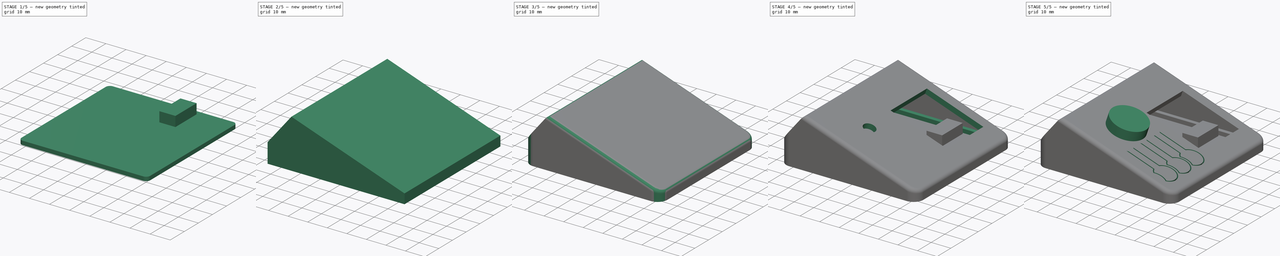
[diagram: build sequence overview — one tinted view per stage of 5, left to right]
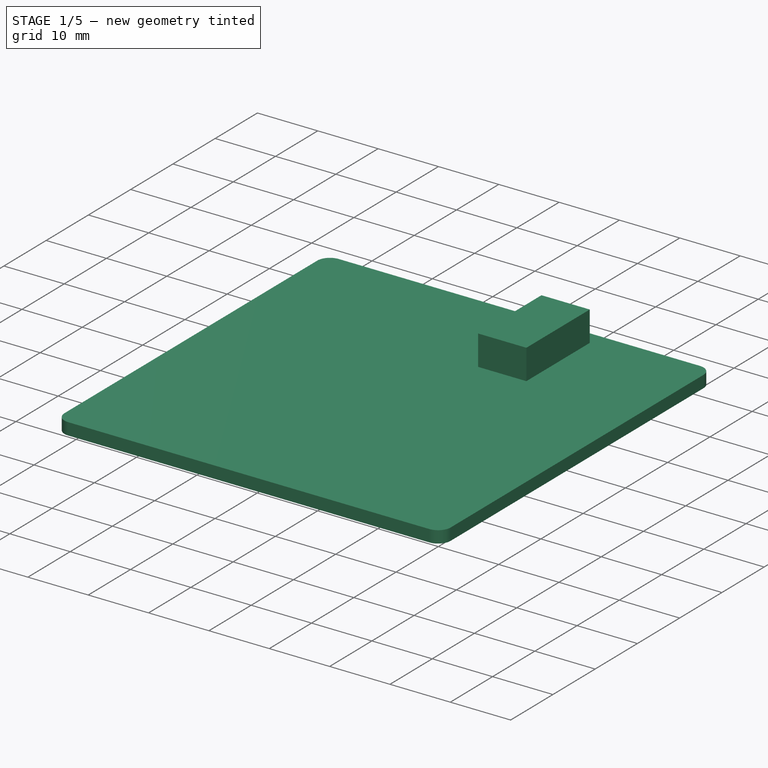
[diagram: stage 1 of 5 — iso view after this stage's code; geometry added in this stage tinted green]
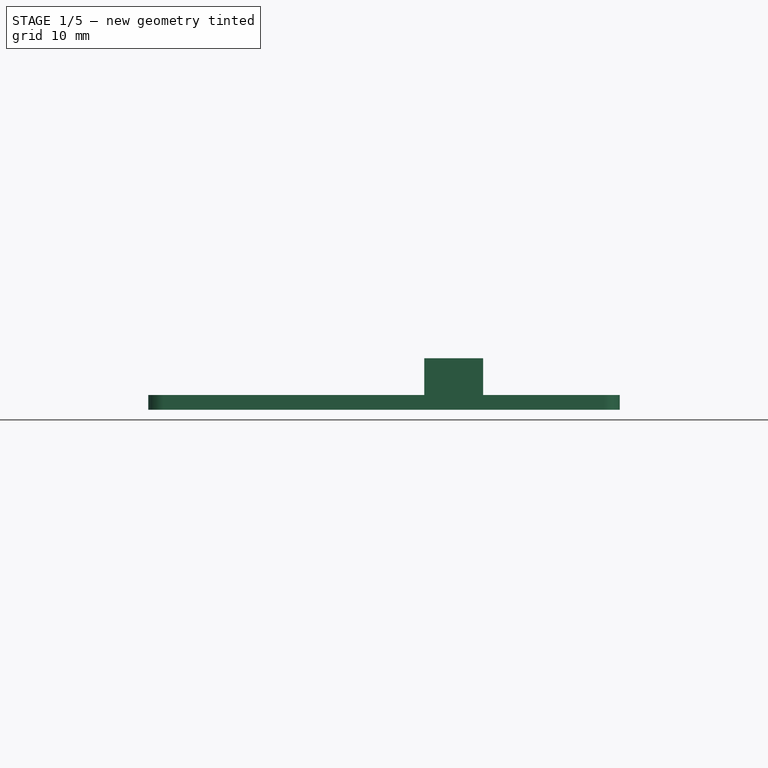
[diagram: stage 1 of 5 — front view after this stage's code; geometry added in this stage tinted green]
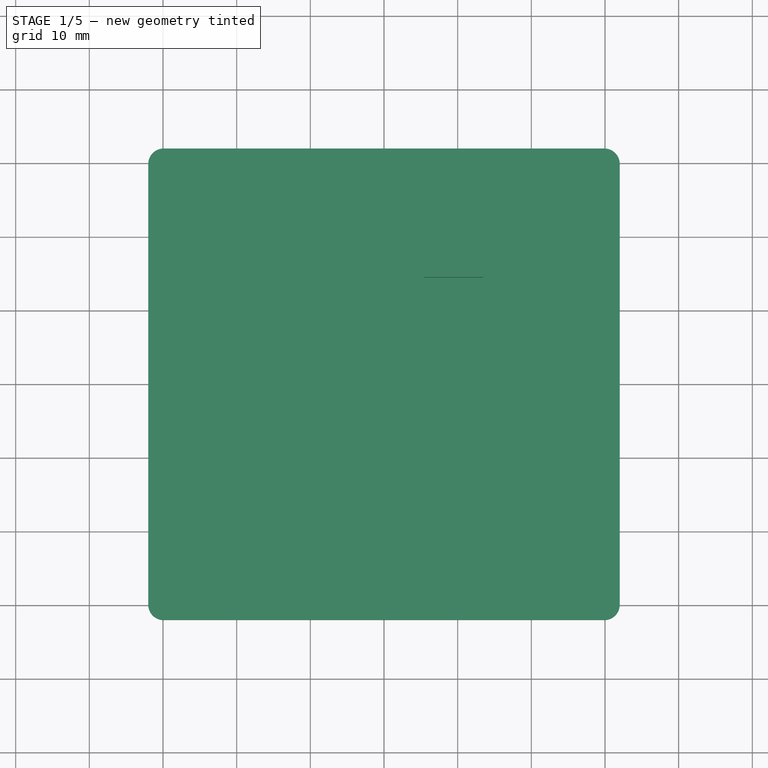
[diagram: stage 1 of 5 — top view after this stage's code; geometry added in this stage tinted green]
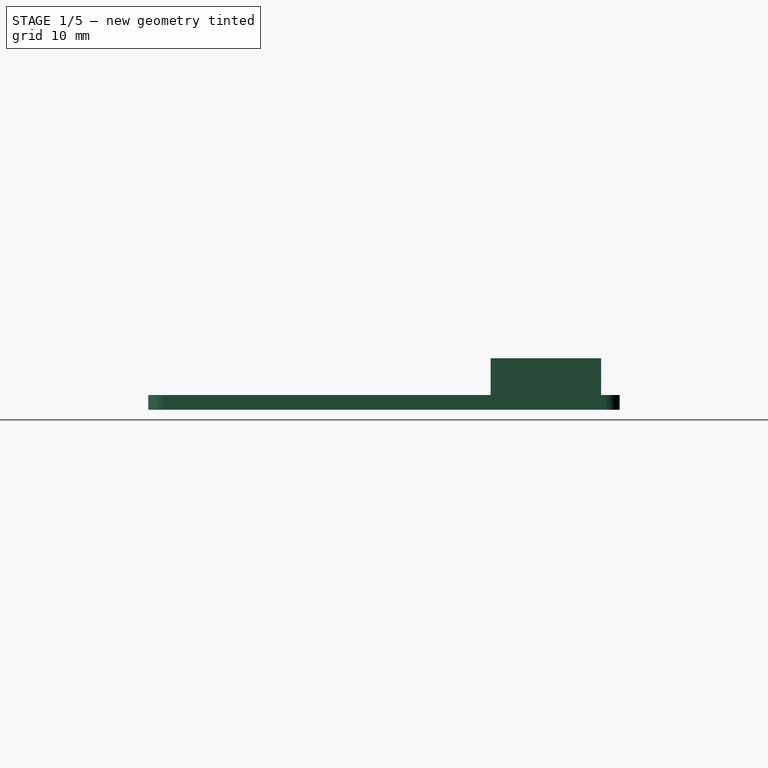
[diagram: stage 1 of 5 — right view after this stage's code; geometry added in this stage tinted green]
FCSTD DOCUMENT  (FreeCAD 1.0R39285 (Git))
Label: case_v1
License: All rights reserved
LicenseURL: http://en.wikipedia.org/wiki/All_rights_reserved
objects: Sketcher::SketchObject×12, PartDesign::Pad×6, PartDesign::Pocket×5, PartDesign::Fillet×2, PartDesign::Body×2, App::Part×2, PartDesign::Thickness×1, Part::Cylinder×1
note: 69 computed .brp shape members not serialized (recipe doc carries the construction recipe); baked Part::Feature solids carry a one-line shape summary decoded from their .brp

FEATURE [Sketcher::SketchObject] Sketch003
  ArcFitTolerance = 1e-06
  AttachmentSupport = -> [XY_Plane003]
  FullyConstrained = false
  MakeInternals = false
  MapMode = 5
  sketch-geometry (10):
    g0: LineSegment StartX=-29.9116 StartY=-32 StartZ=0 EndX=29.9116 EndY=-32 EndZ=0
    g1: LineSegment StartX=32 StartY=-29.9116 StartZ=0 EndX=32 EndY=29.9116 EndZ=0
    g2: LineSegment StartX=29.9116 StartY=32 StartZ=0 EndX=-29.9116 EndY=32 EndZ=0
    g3: LineSegment StartX=-32 StartY=29.9116 StartZ=0 EndX=-32 EndY=-29.9116 EndZ=0
    g4: ArcOfCircle CenterX=-29.9116 CenterY=-29.9116 CenterZ=0 NormalX=0 NormalY=0 NormalZ=1 AngleXU=0 Radius=2.08837 StartAngle=3.14159 EndAngle=4.71239
    g5: ArcOfCircle CenterX=29.9116 CenterY=-29.9116 CenterZ=0 NormalX=0 NormalY=0 NormalZ=1 AngleXU=0 Radius=2.08837 StartAngle=4.71239 EndAngle=6.28319
    g6: ArcOfCircle CenterX=29.9116 CenterY=29.9116 CenterZ=0 NormalX=0 NormalY=0 NormalZ=1 AngleXU=0 Radius=2.08837 StartAngle=0 EndAngle=1.5708
    g7: ArcOfCircle CenterX=-29.9116 CenterY=29.9116 CenterZ=0 NormalX=0 NormalY=0 NormalZ=1 AngleXU=0 Radius=2.08837 StartAngle=1.5708 EndAngle=3.14159
    g8: GeomPoint [constr] X=-32 Y=-32 Z=0
    g9: GeomPoint [constr] X=32 Y=32 Z=0
  constraints (23):
    c: Tangent(g0,g4) = -1.5708
    c: Tangent(g0,g5) = -1.5708
    c: Tangent(g1,g5) = -1.5708
    c: Tangent(g1,g6) = -1.5708
    c: Tangent(g2,g6) = -1.5708
    c: Tangent(g2,g7) = -1.5708
    c: Tangent(g3,g7) = -1.5708
    c: Tangent(g3,g4) = -1.5708
    c: Horizontal(g0)
    c: Horizontal(g2)
    c: Vertical(g1)
    c: Vertical(g3)
    c: Equal(g6,g7)
    c: PointOnObject(g8,g0)
    c: PointOnObject(g8,g3)
    c: PointOnObject(g9,g1)
    c: PointOnObject(g9,g2)
    c: Symmetric(g2,g0,g-1)
    c: Symmetric(g1,g3,g-2)
    c: DistanceY(g0,g-1) = 32
    c: DistanceX(g-1,g1) = 32
    c: DistanceX(g5,g1) = 2.08837
    c: DistanceY(g0,g5) = 2.08837
FEATURE [PartDesign::Pad] Pad001
  Direction = (0,0,1)
  Length = 2
  Length2 = 10
  Profile = -> Sketch003
  ReferenceAxis = -> Sketch003 [N_Axis]
  Suppressed = false
  Type = 0
FEATURE [PartDesign::Body] Body  label="top_body"
  AllowCompound = false
  Group = -> [Sketch,Pad,Fillet,Thickness,Fillet001,Sketch001,Pocket,Sketch004,Pocket001,Sketch005,Pad002,Sketch006,Pocket002,Sketch007,Sketch008,Pocket003]
  Origin = -> Origin001
  Tip = -> Pocket003
FEATURE [App::Part] Part  label="top"
  Group = -> [Body]
  Origin = -> Origin
FEATURE [Sketcher::SketchObject] Sketch009  label="spodni-nohy"
  ArcFitTolerance = 1e-06
  AttachmentSupport = -> [Pad001]
  FullyConstrained = false
  MakeInternals = false
  MapMode = 5
  Placement = pos=(0,0,0) rot=(1,0,0;3.14159rad)
  sketch-geometry (4):
    g0: Circle CenterX=24.326 CenterY=21.8246 CenterZ=0 NormalX=0 NormalY=0 NormalZ=1 AngleXU=0 Radius=6.1
    g1: Circle CenterX=22.2077 CenterY=-24.438 CenterZ=0 NormalX=0 NormalY=0 NormalZ=1 AngleXU=0 Radius=6.1
    g2: Circle CenterX=-24.3707 CenterY=-22.5453 CenterZ=0 NormalX=0 NormalY=0 NormalZ=1 AngleXU=0 Radius=6.1
    g3: Circle CenterX=-22.0614 CenterY=24.311 CenterZ=0 NormalX=0 NormalY=0 NormalZ=1 AngleXU=0 Radius=6.1
  constraints (4):
    c: Diameter(g0) = 12.2
    c: Diameter(g1) = 12.2
    c: Diameter(g2) = 12.2
    c: Diameter(g3) = 12.2
FEATURE [PartDesign::Pocket] Pocket004
  BaseFeature = -> Pad001
  Direction = (0,0,1)
  Length = 1.3
  Length2 = 5
  Profile = -> Sketch009
  ReferenceAxis = -> Sketch009 [N_Axis]
  Suppressed = false
  Type = 0
FEATURE [Sketcher::SketchObject] Sketch010  label="podpora_lcd"
  ArcFitTolerance = 1e-06
  AttachmentSupport = -> [Pocket004]
  ExternalGeometry = -> [Pocket004]
  FullyConstrained = false
  MakeInternals = false
  MapMode = 5
  Placement = pos=(0,0,2) rot=(0,0,1;0rad)
  sketch-geometry (4):
    g0: LineSegment StartX=5.46 StartY=29.4695 StartZ=0 EndX=5.46 EndY=14.4695 EndZ=0
    g1: LineSegment StartX=5.46 StartY=14.4695 StartZ=0 EndX=13.46 EndY=14.4695 EndZ=0
    g2: LineSegment StartX=13.46 StartY=14.4695 StartZ=0 EndX=13.46 EndY=29.4695 EndZ=0
    g3: LineSegment StartX=13.46 StartY=29.4695 StartZ=0 EndX=5.46 EndY=29.4695 EndZ=0
  constraints (11):
    c: Coincident(g0,g1)
    c: Coincident(g1,g2)
    c: Coincident(g2,g3)
    c: Coincident(g3,g0)
    c: Vertical(g0)
    c: Vertical(g2)
    c: Horizontal(g1)
    c: Horizontal(g3)
    c: DistanceX(g3,g3) = 8
    c: DistanceY(g0,g0) = 15
    c: DistanceX(g-4,g0) = 37.46
FEATURE [Sketcher::SketchObject] Sketch011  label="podpora-rotary"
  ArcFitTolerance = 1e-06
  AttachmentSupport = -> [Pocket004]
  ExternalGeometry = -> [Pocket004]
  FullyConstrained = false
  MakeInternals = false
  MapMode = 5
  Placement = pos=(0,0,2) rot=(0,0,1;0rad)
  sketch-geometry (1):
    g0: Circle CenterX=-3.48231 CenterY=-16.14 CenterZ=0 NormalX=0 NormalY=0 NormalZ=1 AngleXU=0 Radius=3.2
  constraints (2):
    c: DistanceY(g-3,g0) = 15.86
    c: Radius(g0) = 3.2
FEATURE [PartDesign::Pad] Pad003
  BaseFeature = -> Pocket004
  Direction = (0,0,1)
  Length = 5
  Length2 = 10
  Profile = -> Sketch010
  ReferenceAxis = -> Sketch010 [N_Axis]
  Suppressed = false
  Type = 0
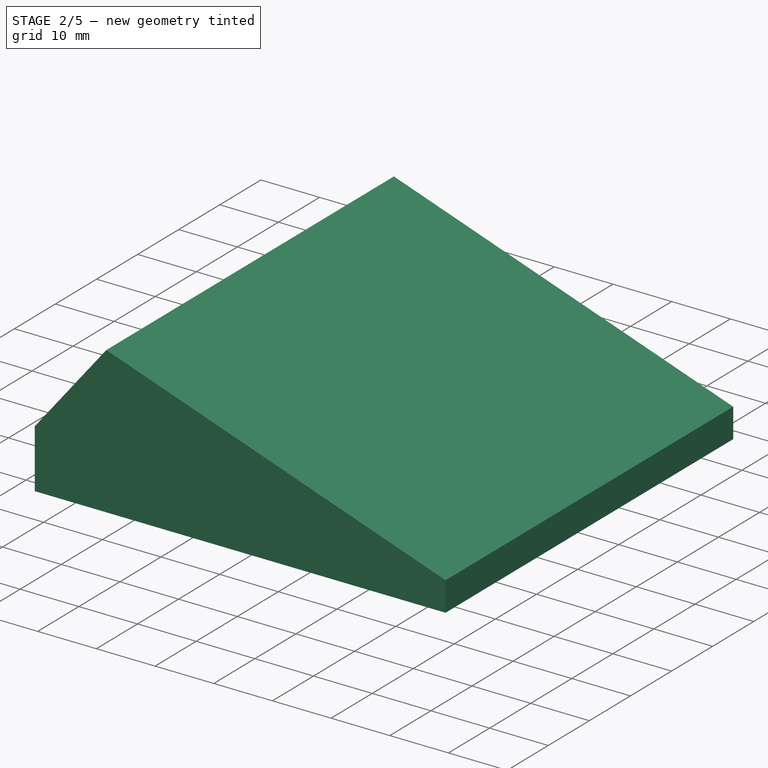
[diagram: stage 2 of 5 — iso view after this stage's code; geometry added in this stage tinted green]
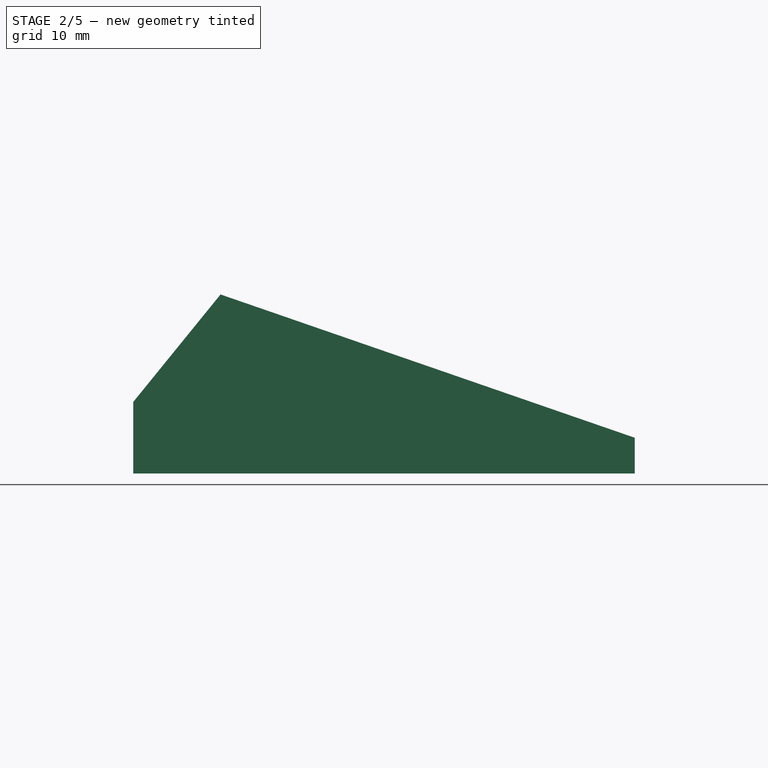
[diagram: stage 2 of 5 — front view after this stage's code; geometry added in this stage tinted green]
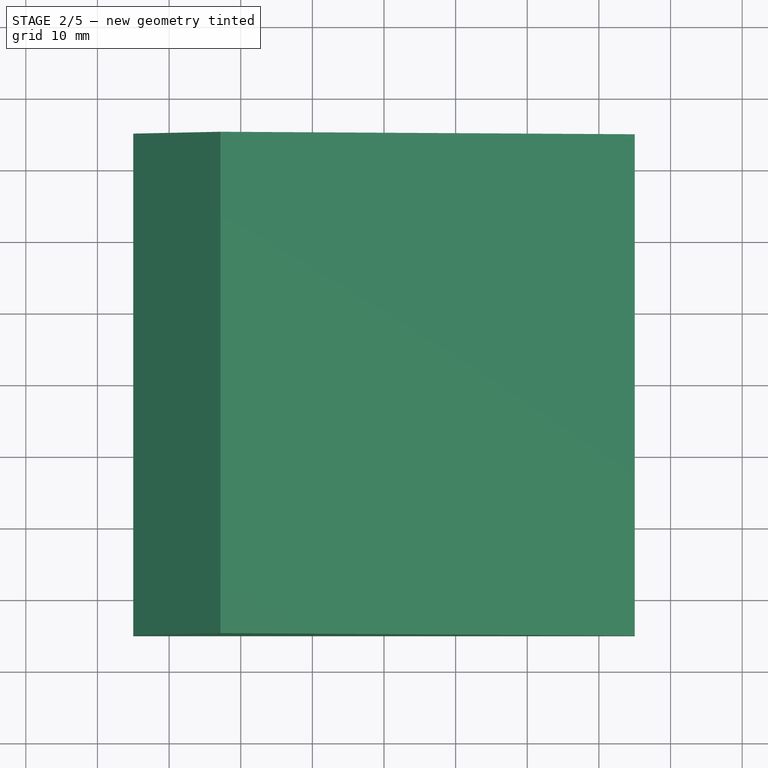
[diagram: stage 2 of 5 — top view after this stage's code; geometry added in this stage tinted green]
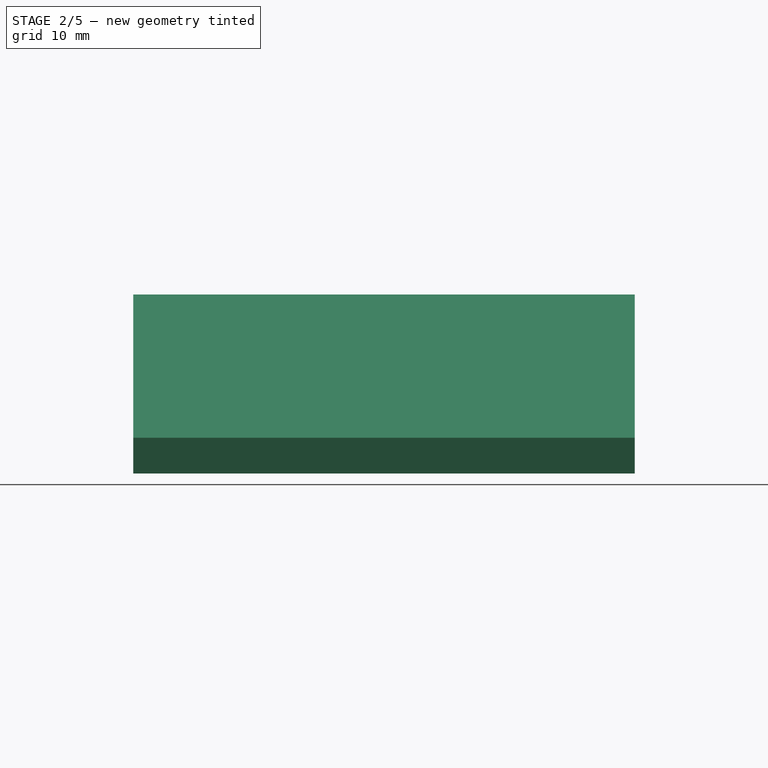
[diagram: stage 2 of 5 — right view after this stage's code; geometry added in this stage tinted green]
FEATURE [Sketcher::SketchObject] Sketch
  ArcFitTolerance = 1e-06
  AttachmentSupport = -> [XZ_Plane001]
  FullyConstrained = true
  MakeInternals = false
  MapMode = 5
  Placement = pos=(0,0,0) rot=(1,0,0;1.5708rad)
  sketch-geometry (5):
    g0: LineSegment StartX=-35 StartY=0 StartZ=0 EndX=35 EndY=0 EndZ=0
    g1: LineSegment StartX=35 StartY=0 StartZ=0 EndX=35 EndY=5 EndZ=0
    g2: LineSegment StartX=35 StartY=5 StartZ=0 EndX=-22.818 EndY=25 EndZ=0
    g3: LineSegment StartX=-22.818 StartY=25 StartZ=0 EndX=-35 EndY=10 EndZ=0
    g4: LineSegment StartX=-35 StartY=10 StartZ=0 EndX=-35 EndY=0 EndZ=0
  constraints (14):
    c: PointOnObject(g0,g-1)
    c: Coincident(g0,g1)
    c: Vertical(g1)
    c: Coincident(g1,g2)
    c: Coincident(g2,g3)
    c: Coincident(g3,g4)
    c: Coincident(g4,g0)
    c: Vertical(g4)
    c: Angle(g3,g2) = 1.91986
    c: DistanceY(g1,g1) = 5
    c: DistanceY(g4,g4) = 10
    c: DistanceX(g0,g0) = 70
    c: Symmetric(g0,g0,g-2)
    c: DistanceY(g-1,g2) = 25
FEATURE [PartDesign::Pad] Pad
  Direction = (0,-1,2e-16)
  Length = 70
  Length2 = 10
  Midplane = true
  Placement = pos=(0,0,0) rot=(1,0,0;1.5708rad)
  Profile = -> Sketch
  ReferenceAxis = -> Sketch [N_Axis]
  Suppressed = false
  Type = 0
FEATURE [PartDesign::Pad] Pad004
  BaseFeature = -> Pad003
  Direction = (0,0,1)
  Length = 7
  Length2 = 10
  Profile = -> Sketch011
  ReferenceAxis = -> Sketch011 [N_Axis]
  Suppressed = false
  Type = 0
FEATURE [Sketcher::SketchObject] Sketch012
  ArcFitTolerance = 1e-06
  AttachmentSupport = -> [Pad004]
  ExternalGeometry = -> [Pad004]
  FullyConstrained = true
  MakeInternals = false
  MapMode = 5
  Placement = pos=(0,0,2) rot=(0,0,1;0rad)
  sketch-geometry (4):
    g0: LineSegment StartX=26 StartY=12.5 StartZ=0 EndX=26 EndY=-12.5 EndZ=0
    g1: LineSegment StartX=26 StartY=-12.5 StartZ=0 EndX=29 EndY=-12.5 EndZ=0
    g2: LineSegment StartX=29 StartY=-12.5 StartZ=0 EndX=29 EndY=12.5 EndZ=0
    g3: LineSegment StartX=29 StartY=12.5 StartZ=0 EndX=26 EndY=12.5 EndZ=0
  constraints (11):
    c: Coincident(g0,g1)
    c: Coincident(g1,g2)
    c: Coincident(g2,g3)
    c: Coincident(g3,g0)
    c: Vertical(g0)
    c: Horizontal(g1)
    c: Horizontal(g3)
    c: Symmetric(g2,g1,g-1)
    c: DistanceY(g0,g0) = 25
    c: DistanceX(g1,g1) = 3
    c: DistanceX(g-4,g0) = 58
FEATURE [PartDesign::Pad] Pad005
  BaseFeature = -> Pad004
  Direction = (0,0,1)
  Length = 3
  Length2 = 10
  Profile = -> Sketch012
  ReferenceAxis = -> Sketch012 [N_Axis]
  Suppressed = false
  Type = 0
FEATURE [PartDesign::Body] Body001  label="Body"
  AllowCompound = false
  Group = -> [Sketch003,Pad001,Sketch009,Pocket004,Sketch010,Sketch011,Pad003,Pad004,Sketch012,Pad005]
  Origin = -> Origin003
  Tip = -> Pad005
FEATURE [App::Part] Part001  label="bottom"
  Group = -> [Body001]
  Origin = -> Origin002
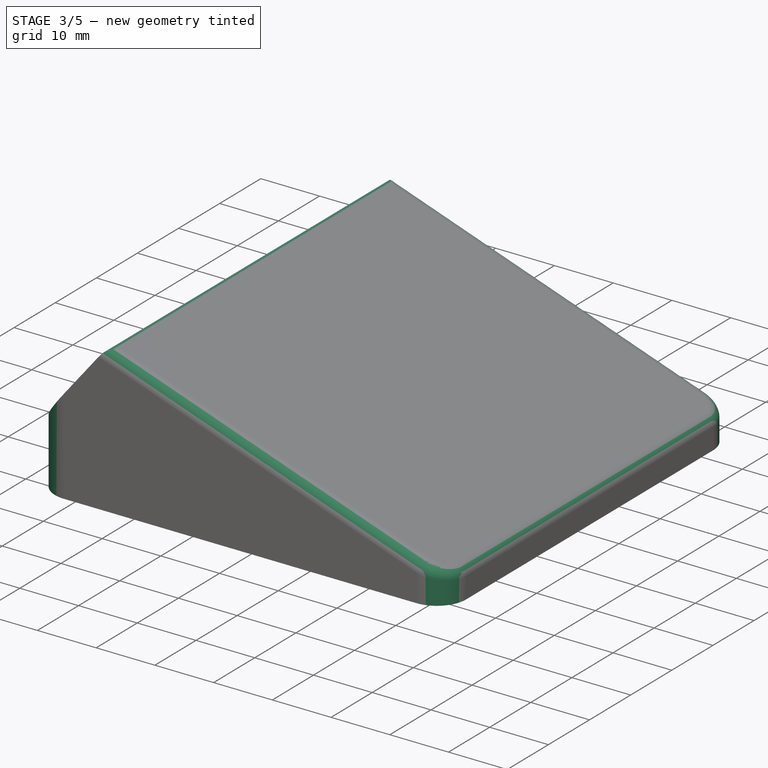
[diagram: stage 3 of 5 — iso view after this stage's code; geometry added in this stage tinted green]
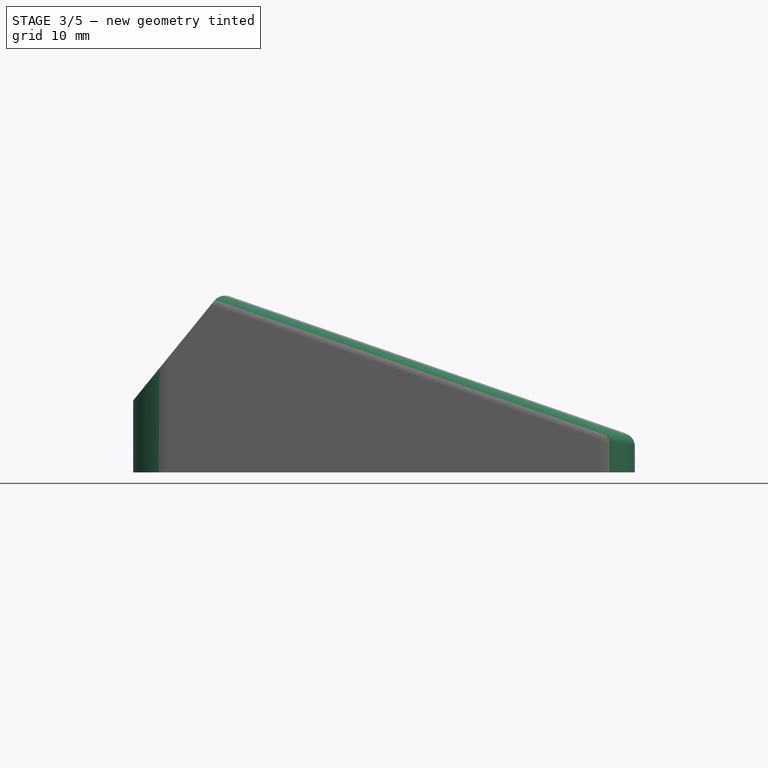
[diagram: stage 3 of 5 — front view after this stage's code; geometry added in this stage tinted green]
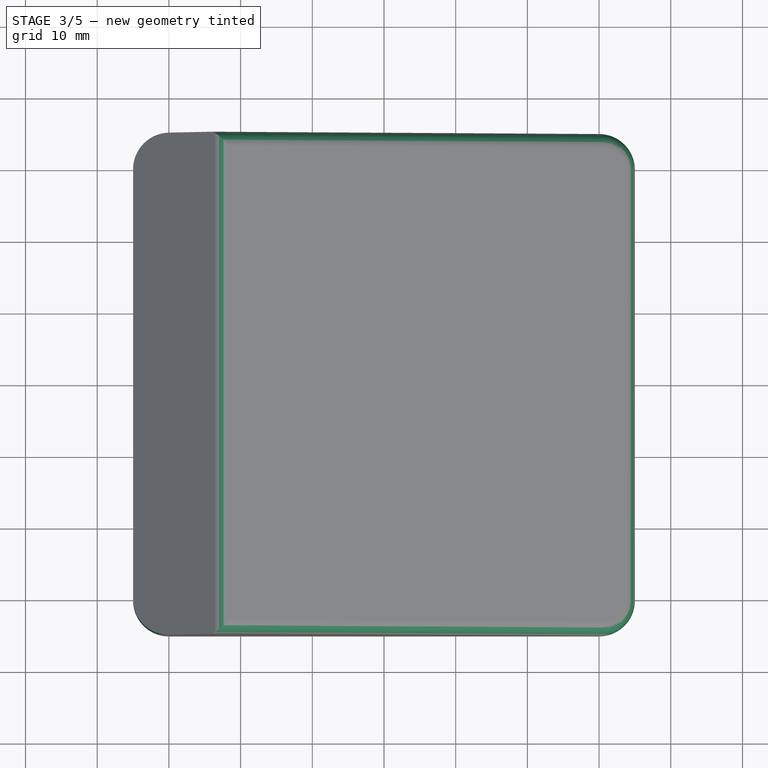
[diagram: stage 3 of 5 — top view after this stage's code; geometry added in this stage tinted green]
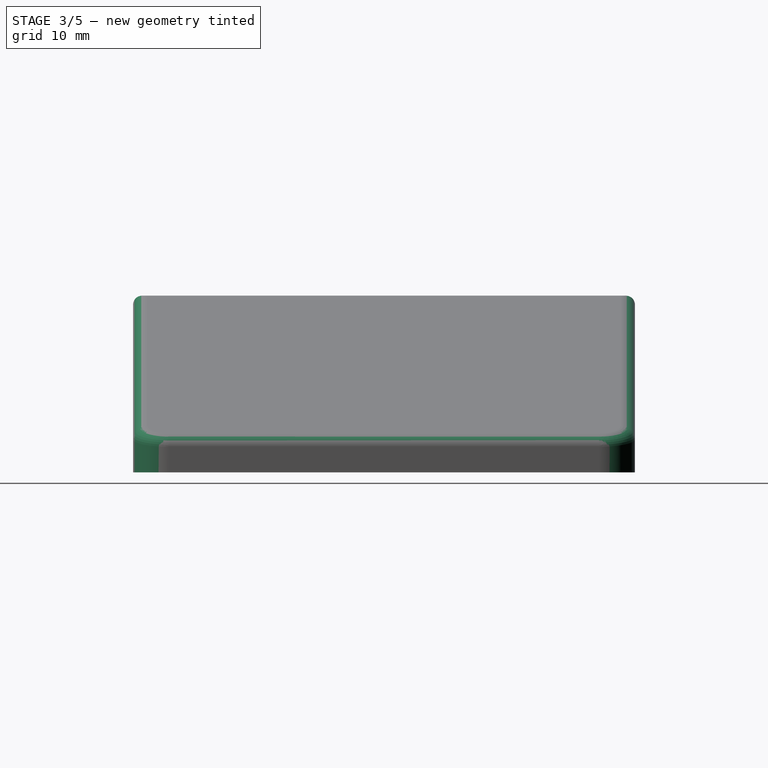
[diagram: stage 3 of 5 — right view after this stage's code; geometry added in this stage tinted green]
FEATURE [PartDesign::Fillet] Fillet
  Base = -> Pad [Edge7,Edge6,Edge14,Edge15]
  BaseFeature = -> Pad
  Placement = pos=(0,0,0) rot=(1,0,0;1.5708rad)
  Radius = 5
  SupportTransform = false
  Suppressed = false
  UseAllEdges = false
FEATURE [PartDesign::Thickness] Thickness
  Base = -> Fillet [Face1]
  BaseFeature = -> Fillet
  Intersection = false
  Join = 0
  Mode = 0
  Reversed = true
  SupportTransform = false
  Suppressed = false
  Value = 2.8
FEATURE [PartDesign::Fillet] Fillet001
  Base = -> Thickness [Face10]
  BaseFeature = -> Thickness
  Radius = 2
  SupportTransform = false
  Suppressed = false
  UseAllEdges = false
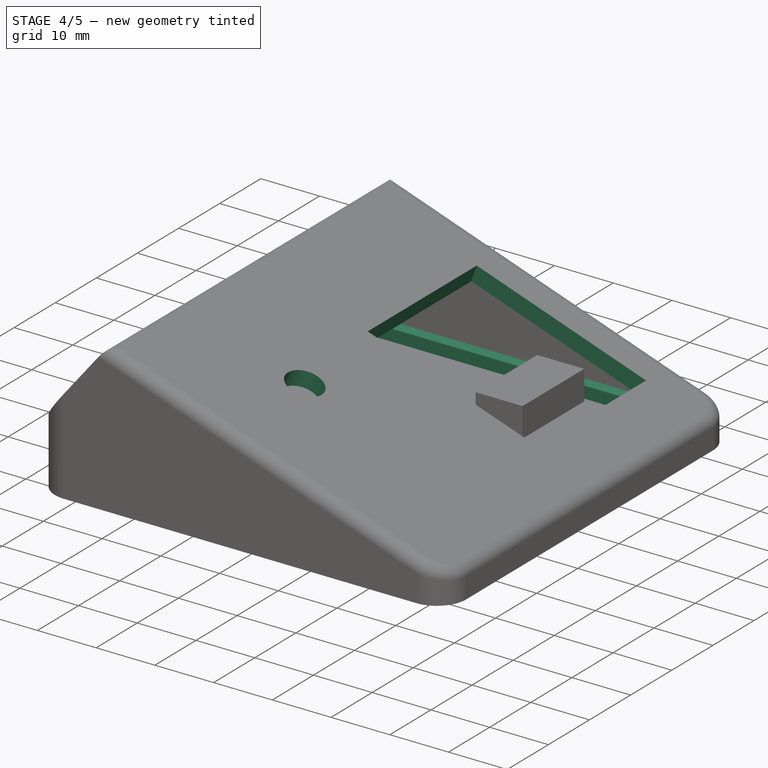
[diagram: stage 4 of 5 — iso view after this stage's code; geometry added in this stage tinted green]
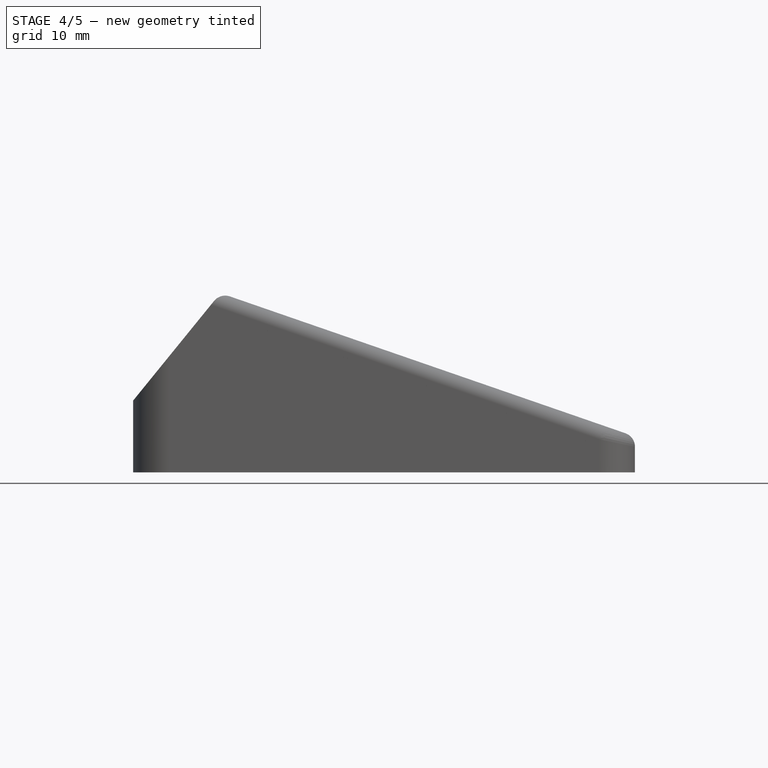
[diagram: stage 4 of 5 — front view after this stage's code; geometry added in this stage tinted green]
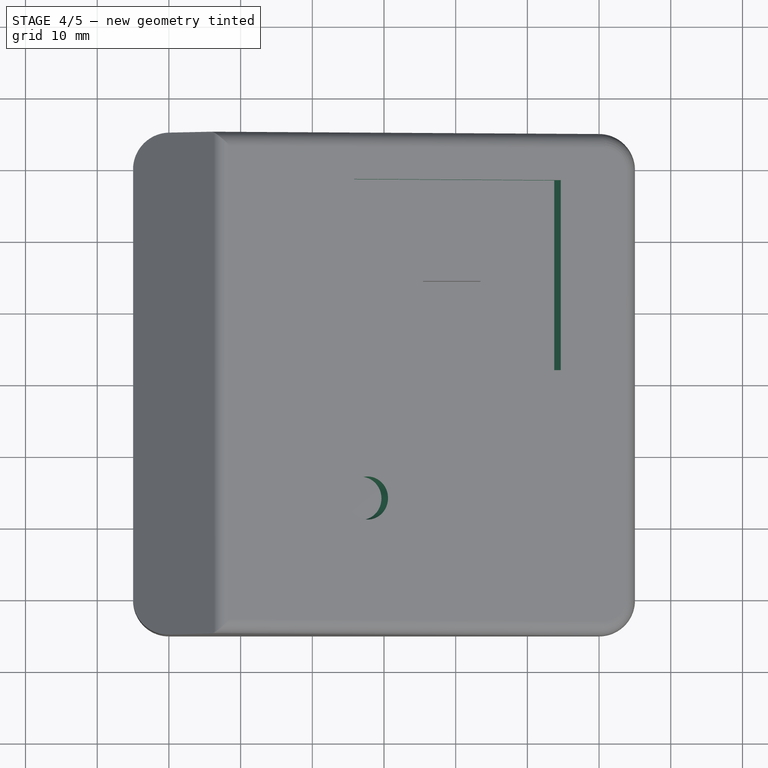
[diagram: stage 4 of 5 — top view after this stage's code; geometry added in this stage tinted green]
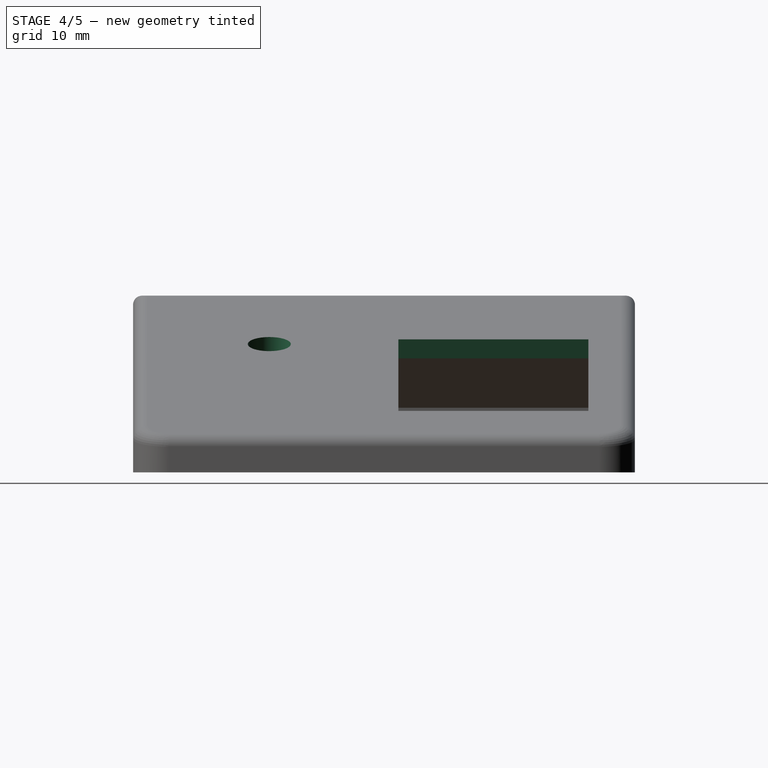
[diagram: stage 4 of 5 — right view after this stage's code; geometry added in this stage tinted green]
FEATURE [Sketcher::SketchObject] Sketch001
  ArcFitTolerance = 1e-06
  AttachmentSupport = -> [Fillet001]
  FullyConstrained = true
  MakeInternals = false
  MapMode = 5
  Placement = pos=(5.28512,6.8e-15,15.2788) rot=(0,1,0;0.333029rad)
  sketch-geometry (5):
    g0: LineSegment StartX=-10 StartY=28.5 StartZ=0 EndX=-10 EndY=2 EndZ=0
    g1: LineSegment StartX=-10 StartY=2 StartZ=0 EndX=20.5 EndY=2 EndZ=0
    g2: LineSegment StartX=20.5 StartY=2 StartZ=0 EndX=20.5 EndY=28.5 EndZ=0
    g3: LineSegment StartX=20.5 StartY=28.5 StartZ=0 EndX=-10 EndY=28.5 EndZ=0
    g4: Circle CenterX=-8 CenterY=-16 CenterZ=0 NormalX=0 NormalY=0 NormalZ=1 AngleXU=0 Radius=3
  constraints (15):
    c: Coincident(g0,g1)
    c: Coincident(g1,g2)
    c: Coincident(g2,g3)
    c: Coincident(g3,g0)
    c: Vertical(g0)
    c: Vertical(g2)
    c: Horizontal(g1)
    c: Horizontal(g3)
    c: DistanceY(g0,g0) = 26.5
    c: DistanceX(g3,g3) = 30.5
    c: Diameter(g4) = 6
    c: DistanceX(g4,g-1) = 8
    c: DistanceY(g4,g-1) = 16
    c: DistanceX(g0,g-1) = 10
    c: DistanceY(g-1,g0) = 2
FEATURE [PartDesign::Pocket] Pocket
  BaseFeature = -> Fillet001
  Direction = (-0.326907,0,-0.945056)
  Length = 5
  Length2 = 5
  Profile = -> Sketch001
  ReferenceAxis = -> Sketch001 [N_Axis]
  Suppressed = false
  Type = 0
FEATURE [Sketcher::SketchObject] Sketch004
  ArcFitTolerance = 1e-06
  AttachmentSupport = -> [Thickness]
  FullyConstrained = true
  MakeInternals = false
  MapMode = 5
  Placement = pos=(-35,0,0) rot=(0.57735,-0.57735,-0.57735;2.0944rad)
  sketch-geometry (4):
    g0: LineSegment StartX=-4.25 StartY=7.3 StartZ=0 EndX=-4.25 EndY=3.5 EndZ=0
    g1: LineSegment StartX=-4.25 StartY=3.5 StartZ=0 EndX=4.25 EndY=3.5 EndZ=0
    g2: LineSegment StartX=4.25 StartY=3.5 StartZ=0 EndX=4.25 EndY=7.3 EndZ=0
    g3: LineSegment StartX=4.25 StartY=7.3 StartZ=0 EndX=-4.25 EndY=7.3 EndZ=0
  constraints (11):
    c: Coincident(g0,g1)
    c: Coincident(g1,g2)
    c: Coincident(g2,g3)
    c: Coincident(g3,g0)
    c: Vertical(g0)
    c: Vertical(g2)
    c: Horizontal(g3)
    c: DistanceX(g3,g3) = 8.5
    c: DistanceY(g2,g2) = 3.8
    c: Symmetric(g0,g1,g-2)
    c: DistanceY(g-1,g1) = 3.5
FEATURE [PartDesign::Pocket] Pocket001
  BaseFeature = -> Pocket
  Direction = (1,0,0)
  Length = 5
  Length2 = 5
  Profile = -> Sketch004
  ReferenceAxis = -> Sketch004 [N_Axis]
  Suppressed = false
  Type = 0
FEATURE [Sketcher::SketchObject] Sketch005
  ArcFitTolerance = 1e-06
  AttachmentSupport = -> [Pocket001]
  ExternalGeometry = -> [Pocket001]
  FullyConstrained = true
  MakeInternals = false
  MapMode = 5
  Placement = pos=(0,0,-1e-16) rot=(1,0,0;3.14159rad)
  sketch-geometry (18):
    g0: LineSegment StartX=-32.2 StartY=30 StartZ=0 EndX=-32.2 EndY=-30 EndZ=0
    g1: LineSegment StartX=-30 StartY=-32.2 StartZ=0 EndX=30 EndY=-32.2 EndZ=0
    g2: LineSegment StartX=32.2 StartY=-30 StartZ=0 EndX=32.2 EndY=30 EndZ=0
    g3: LineSegment StartX=30 StartY=32.2 StartZ=0 EndX=-30 EndY=32.2 EndZ=0
    g4: ArcOfCircle CenterX=-30 CenterY=30 CenterZ=0 NormalX=0 NormalY=0 NormalZ=1 AngleXU=0 Radius=2.2 StartAngle=1.5708 EndAngle=3.14159
    g5: ArcOfCircle CenterX=-30 CenterY=-30 CenterZ=0 NormalX=0 NormalY=0 NormalZ=1 AngleXU=0 Radius=2.2 StartAngle=3.14159 EndAngle=4.71239
    g6: ArcOfCircle CenterX=30 CenterY=-30 CenterZ=0 NormalX=0 NormalY=0 NormalZ=1 AngleXU=0 Radius=2.2 StartAngle=4.71239 EndAngle=6.28319
    g7: ArcOfCircle CenterX=30 CenterY=30 CenterZ=0 NormalX=0 NormalY=0 NormalZ=1 AngleXU=0 Radius=2.2 StartAngle=0 EndAngle=1.5708
    g8: GeomPoint [constr] X=-32.2 Y=32.2 Z=0
    g9: GeomPoint [constr] X=32.2 Y=-32.2 Z=0
    g10: LineSegment StartX=-30.2 StartY=26.5 StartZ=0 EndX=-26.5 EndY=30.2 EndZ=0
    g11: LineSegment StartX=-26.5 StartY=30.2 StartZ=0 EndX=26.5 EndY=30.2 EndZ=0
    g12: LineSegment StartX=26.5 StartY=30.2 StartZ=0 EndX=30.2 EndY=26.5 EndZ=0
    g13: LineSegment StartX=30.2 StartY=26.5 StartZ=0 EndX=30.2 EndY=-26.5 EndZ=0
    g14: LineSegment StartX=30.2 StartY=-26.5 StartZ=0 EndX=26.5 EndY=-30.2 EndZ=0
    g15: LineSegment StartX=26.5 StartY=-30.2 StartZ=0 EndX=-26.5 EndY=-30.2 EndZ=0
    g16: LineSegment StartX=-26.5 StartY=-30.2 StartZ=0 EndX=-30.2 EndY=-26.5 EndZ=0
    g17: LineSegment StartX=-30.2 StartY=-26.5 StartZ=0 EndX=-30.2 EndY=26.5 EndZ=0
  constraints (38):
    c: Tangent(g0,g4) = -1.5708
    c: Tangent(g0,g5) = -1.5708
    c: Tangent(g1,g5) = -1.5708
    c: Tangent(g1,g6) = -1.5708
    c: Tangent(g2,g6) = -1.5708
    c: Tangent(g2,g7) = -1.5708
    c: Tangent(g3,g7) = -1.5708
    c: Tangent(g3,g4) = -1.5708
    c: Vertical(g2)
    c: Horizontal(g1)
    c: Equal(g4,g5)
    c: Equal(g5,g6)
    c: PointOnObject(g8,g0)
    c: PointOnObject(g8,g3)
    c: PointOnObject(g9,g1)
    c: PointOnObject(g9,g2)
    c: Coincident(g-3,g3)
    c: Coincident(g0,g-5)
    c: Coincident(g-3,g3)
    c: Coincident(g-4,g2)
    c: Coincident(g10,g11)
    c: Coincident(g11,g12)
    c: Coincident(g12,g13)
    c: Coincident(g13,g14)
    c: Coincident(g14,g15)
    c: Coincident(g15,g16)
    c: Coincident(g16,g17)
    c: Coincident(g17,g10)
    c: DistanceX(g0,g10) = 2
    c: Symmetric(g10,g12,g-2)
    c: DistanceY(g10,g3) = 2
    c: Symmetric(g10,g15,g-1)
    c: Symmetric(g11,g10,g-2)
    c: Symmetric(g15,g14,g-2)
    c: Symmetric(g12,g13,g-1)
    c: Symmetric(g16,g10,g-1)
    c: Angle(g14,g15) = 2.35619
    c: DistanceX(g10,g-1) = 26.5
FEATURE [PartDesign::Pad] Pad002
  BaseFeature = -> Pocket001
  Direction = (0,0,-1)
  Length = 2
  Length2 = -4
  Profile = -> Sketch005
  ReferenceAxis = -> Sketch005 [N_Axis]
  Reversed = true
  Suppressed = false
  Type = 4
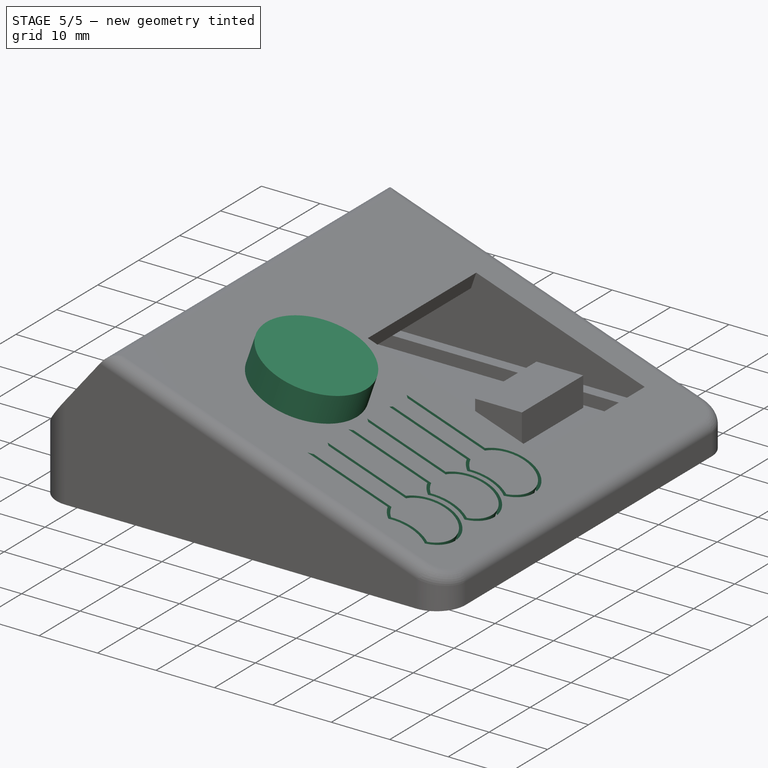
[diagram: stage 5 of 5 — iso view after this stage's code; geometry added in this stage tinted green]
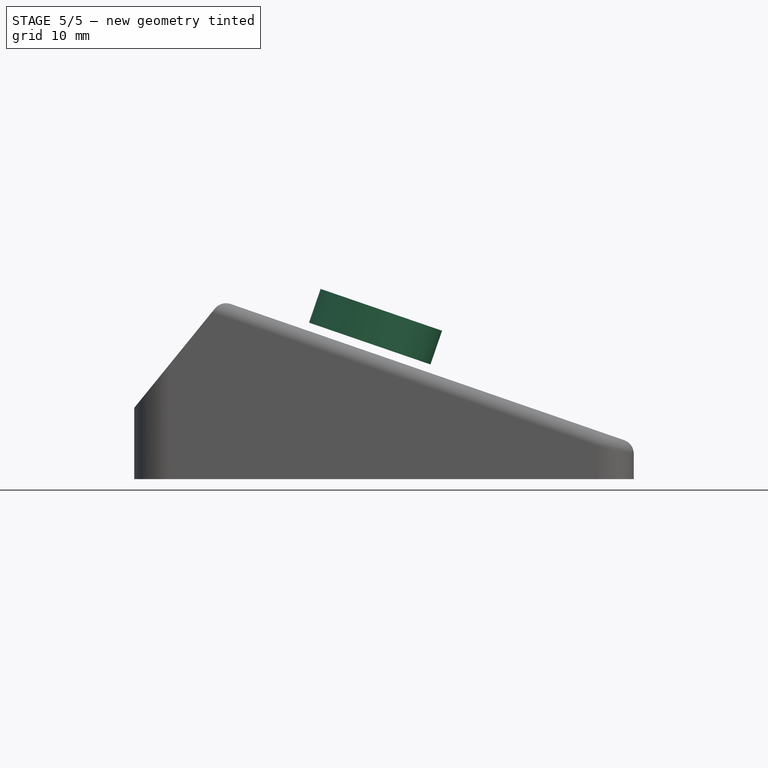
[diagram: stage 5 of 5 — front view after this stage's code; geometry added in this stage tinted green]
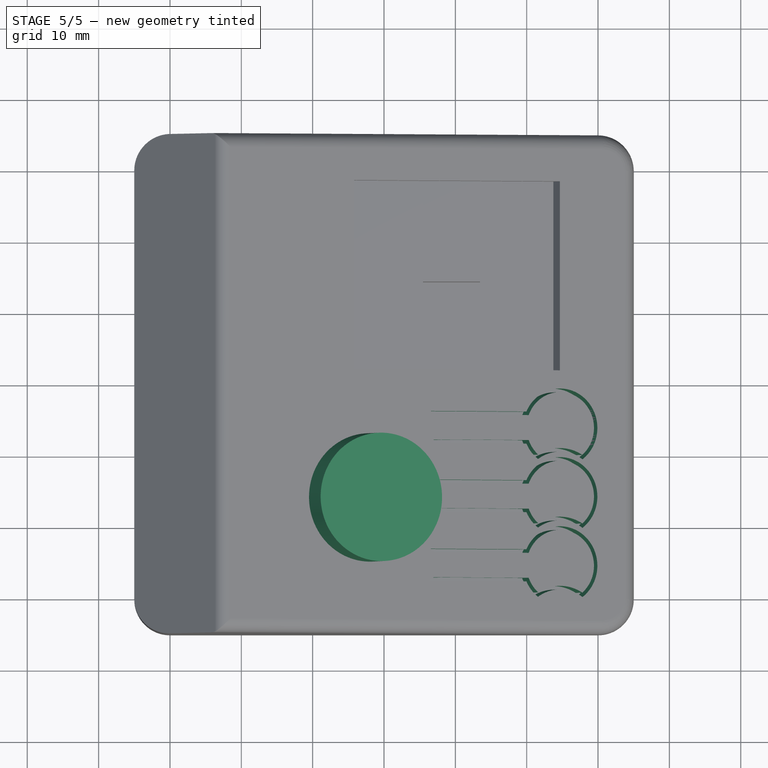
[diagram: stage 5 of 5 — top view after this stage's code; geometry added in this stage tinted green]
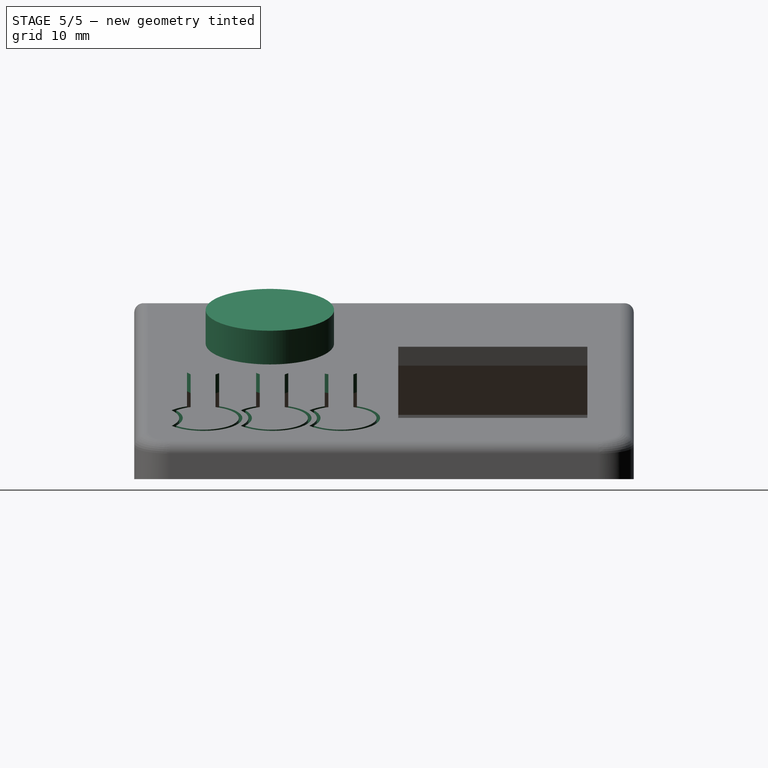
[diagram: stage 5 of 5 — right view after this stage's code; geometry added in this stage tinted green]
FEATURE [Part::Cylinder] Cylinder
  Angle = 360
  AttacherType = Attacher::AttachEngine3D
  FirstAngle = 0
  Height = 5
  Placement = pos=(-2,-16,19) rot=(0,1,0;0.331613rad)
  Radius = 9
  SecondAngle = 0
FEATURE [Sketcher::SketchObject] Sketch006
  ArcFitTolerance = 1e-06
  AttachmentSupport = -> [Pad002]
  FullyConstrained = false
  MakeInternals = false
  MapMode = 5
  Placement = pos=(5.28512,6.8e-15,15.2788) rot=(0,1,0;0.333029rad)
  sketch-geometry (42):
    g0: LineSegment StartX=15.5315 StartY=-23.11 StartZ=0 EndX=1.33145 EndY=-23.11 EndZ=0
    g1: LineSegment StartX=1.01526 StartY=-27.61 StartZ=0 EndX=15.5315 EndY=-27.61 EndZ=0
    g2: LineSegment [constr] StartX=15.5315 StartY=-27.61 StartZ=0 EndX=15.5315 EndY=-23.11 EndZ=0
    g3: ArcOfCircle CenterX=20.5502 CenterY=-25.36 CenterZ=0 NormalX=0 NormalY=0 NormalZ=1 AngleXU=0 Radius=5.5 StartAngle=5.35551 EndAngle=9.00332
    g4: ArcOfCircle CenterX=20.5502 CenterY=-34.41 CenterZ=0 NormalX=0 NormalY=0 NormalZ=1 AngleXU=0 Radius=5.7 StartAngle=0.953716 EndAngle=2.18788
    g5: ArcOfCircle CenterX=20.5502 CenterY=-25.36 CenterZ=0 NormalX=0 NormalY=0 NormalZ=1 AngleXU=0 Radius=5.5 StartAngle=3.56305 EndAngle=4.06926
    g6: LineSegment StartX=15.8664 StartY=-23.61 StartZ=0 EndX=1.86642 EndY=-23.61 EndZ=0
    g7: LineSegment StartX=1.77547 StartY=-27.11 StartZ=0 EndX=15.8664 EndY=-27.11 EndZ=0
    g8: LineSegment [constr] StartX=15.8664 StartY=-27.11 StartZ=0 EndX=15.8664 EndY=-23.61 EndZ=0
    g9: ArcOfCircle CenterX=20.5502 CenterY=-25.36 CenterZ=0 NormalX=0 NormalY=0 NormalZ=1 AngleXU=0 Radius=5 StartAngle=5.42525 EndAngle=9.06721
    g10: ArcOfCircle CenterX=20.5502 CenterY=-34.41 CenterZ=0 NormalX=0 NormalY=0 NormalZ=1 AngleXU=0 Radius=6.2 StartAngle=1.01523 EndAngle=2.12636
    g11: ArcOfCircle CenterX=20.5502 CenterY=-25.36 CenterZ=0 NormalX=0 NormalY=0 NormalZ=1 AngleXU=0 Radius=5 StartAngle=3.49916 EndAngle=3.99952
    g12: LineSegment StartX=1.33145 StartY=-23.11 StartZ=0 EndX=1.86642 EndY=-23.61 EndZ=0
    g13: LineSegment StartX=1.01526 StartY=-27.61 StartZ=0 EndX=1.77547 EndY=-27.11 EndZ=0
    g14: LineSegment StartX=15.5315 StartY=-13.4156 StartZ=0 EndX=1.33145 EndY=-13.4156 EndZ=0
    g15: LineSegment StartX=1.19829 StartY=-17.9156 StartZ=0 EndX=15.5315 EndY=-17.9156 EndZ=0
    g16: LineSegment [constr] StartX=15.5315 StartY=-17.9156 StartZ=0 EndX=15.5315 EndY=-13.4156 EndZ=0
    g17: ArcOfCircle CenterX=20.5502 CenterY=-15.6656 CenterZ=0 NormalX=0 NormalY=0 NormalZ=1 AngleXU=0 Radius=5.5 StartAngle=5.35551 EndAngle=9.00332
    g18: ArcOfCircle CenterX=20.5502 CenterY=-24.7156 CenterZ=0 NormalX=0 NormalY=0 NormalZ=1 AngleXU=0 Radius=5.7 StartAngle=0.953716 EndAngle=2.18788
    g19: ArcOfCircle CenterX=20.5502 CenterY=-15.6656 CenterZ=0 NormalX=0 NormalY=0 NormalZ=1 AngleXU=0 Radius=5.5 StartAngle=3.56305 EndAngle=4.06926
    g20: LineSegment StartX=15.8664 StartY=-13.9156 StartZ=0 EndX=1.86642 EndY=-13.9156 EndZ=0
    g21: LineSegment StartX=1.77547 StartY=-17.4156 StartZ=0 EndX=15.8664 EndY=-17.4156 EndZ=0
    g22: LineSegment [constr] StartX=15.8664 StartY=-17.4156 StartZ=0 EndX=15.8664 EndY=-13.9156 EndZ=0
    g23: ArcOfCircle CenterX=20.5502 CenterY=-15.6656 CenterZ=0 NormalX=0 NormalY=0 NormalZ=1 AngleXU=0 Radius=5 StartAngle=5.42525 EndAngle=9.06721
    g24: ArcOfCircle CenterX=20.5502 CenterY=-24.7156 CenterZ=0 NormalX=0 NormalY=0 NormalZ=1 AngleXU=0 Radius=6.2 StartAngle=1.01523 EndAngle=2.12636
    g25: ArcOfCircle CenterX=20.5502 CenterY=-15.6656 CenterZ=0 NormalX=0 NormalY=0 NormalZ=1 AngleXU=0 Radius=5 StartAngle=3.49916 EndAngle=3.99952
    g26: LineSegment StartX=1.33145 StartY=-13.4156 StartZ=0 EndX=1.86642 EndY=-13.9156 EndZ=0
    g27: LineSegment StartX=1.19829 StartY=-17.9156 StartZ=0 EndX=1.77547 EndY=-17.4156 EndZ=0
    g28: LineSegment StartX=15.5315 StartY=-3.79941 StartZ=0 EndX=1.33145 EndY=-3.79941 EndZ=0
    g29: LineSegment StartX=1.51861 StartY=-8.29941 StartZ=0 EndX=15.5315 EndY=-8.29941 EndZ=0
    g30: LineSegment [constr] StartX=15.5315 StartY=-8.29941 StartZ=0 EndX=15.5315 EndY=-3.79941 EndZ=0
    g31: ArcOfCircle CenterX=20.5502 CenterY=-6.04941 CenterZ=0 NormalX=0 NormalY=0 NormalZ=1 AngleXU=0 Radius=5.5 StartAngle=5.35551 EndAngle=9.00332
    g32: ArcOfCircle CenterX=20.5502 CenterY=-15.0994 CenterZ=0 NormalX=0 NormalY=0 NormalZ=1 AngleXU=0 Radius=5.7 StartAngle=0.953716 EndAngle=2.18788
    g33: ArcOfCircle CenterX=20.5502 CenterY=-6.04941 CenterZ=0 NormalX=0 NormalY=0 NormalZ=1 AngleXU=0 Radius=5.5 StartAngle=3.56305 EndAngle=4.06926
    g34: LineSegment StartX=15.8664 StartY=-4.29941 StartZ=0 EndX=1.86642 EndY=-4.29941 EndZ=0
    g35: LineSegment StartX=1.77547 StartY=-7.79941 StartZ=0 EndX=15.8664 EndY=-7.79941 EndZ=0
    g36: LineSegment [constr] StartX=15.8664 StartY=-7.79941 StartZ=0 EndX=15.8664 EndY=-4.29941 EndZ=0
    g37: ArcOfCircle CenterX=20.5502 CenterY=-6.04941 CenterZ=0 NormalX=0 NormalY=0 NormalZ=1 AngleXU=0 Radius=5 StartAngle=5.42525 EndAngle=9.06721
    g38: ArcOfCircle CenterX=20.5502 CenterY=-15.0994 CenterZ=0 NormalX=0 NormalY=0 NormalZ=1 AngleXU=0 Radius=6.2 StartAngle=1.01523 EndAngle=2.12636
    g39: ArcOfCircle CenterX=20.5502 CenterY=-6.04941 CenterZ=0 NormalX=0 NormalY=0 NormalZ=1 AngleXU=0 Radius=5 StartAngle=3.49916 EndAngle=3.99952
    g40: LineSegment StartX=1.33145 StartY=-3.79941 StartZ=0 EndX=1.86642 EndY=-4.29941 EndZ=0
    g41: LineSegment StartX=1.51861 StartY=-8.29941 StartZ=0 EndX=1.77547 EndY=-7.79941 EndZ=0
  constraints (116):
    c: Horizontal(g0)
    c: Horizontal(g1)
    c: Coincident(g2,g0)
    c: Vertical(g2)
    c: Coincident(g3,g0)
    c: Diameter(g3) = 11
    c: DistanceY(g1,g0) = 4.5
    c: DistanceX(g0,g0) = 14.2
    c: Coincident(g4,g3)
    c: Vertical(g4,g3)
    c: Coincident(g2,g1)
    c: Coincident(g5,g3)
    c: Coincident(g5,g4)
    c: Coincident(g5,g1)
    c: Horizontal(g4,g3)
    c: Radius(g4) = 5.7
    c: Horizontal(g6)
    c: Horizontal(g7)
    c: Coincident(g8,g6)
    c: Vertical(g8)
    c: Coincident(g9,g6)
    c: Diameter(g9) = 10
    c: DistanceY(g7,g6) = 3.5
    c: DistanceX(g6,g6) = 14
    c: Coincident(g10,g9)
    c: Coincident(g8,g7)
    c: Coincident(g11,g9)
    c: Coincident(g11,g10)
    c: Coincident(g11,g7)
    c: Horizontal(g10,g9)
    c: Radius(g10) = 6.2
    c: Coincident(g3,g9)
    c: Coincident(g12,g0)
    c: Coincident(g12,g6)
    c: Coincident(g13,g1)
    c: Coincident(g13,g7)
    c: Coincident(g4,g10)
    c: DistanceY(g4,g3) = 9.05
    c: Horizontal(g14)
    c: Horizontal(g15)
    c: Coincident(g16,g14)
    c: Vertical(g16)
    c: Coincident(g17,g14)
    c: Diameter(g17) = 11
    c: DistanceY(g15,g14) = 4.5
    c: DistanceX(g14,g14) = 14.2
    c: Coincident(g18,g17)
    c: Vertical(g18,g17)
    c: Coincident(g16,g15)
    c: Coincident(g19,g17)
    c: Coincident(g19,g18)
    c: Coincident(g19,g15)
    c: Horizontal(g18,g17)
    c: Radius(g18) = 5.7
    c: Horizontal(g20)
    c: Horizontal(g21)
    c: Coincident(g22,g20)
    c: Vertical(g22)
    c: Coincident(g23,g20)
    c: Diameter(g23) = 10
    c: DistanceY(g21,g20) = 3.5
    c: DistanceX(g20,g20) = 14
    c: Coincident(g24,g23)
    c: Coincident(g22,g21)
    c: Coincident(g25,g23)
    c: Coincident(g25,g24)
    c: Coincident(g25,g21)
    c: Horizontal(g24,g23)
    c: Radius(g24) = 6.2
    c: Coincident(g17,g23)
    c: Coincident(g26,g14)
    c: Coincident(g26,g20)
    c: Coincident(g27,g15)
    c: Coincident(g27,g21)
    c: Coincident(g18,g24)
    c: DistanceY(g18,g17) = 9.05
    c: Horizontal(g28)
    c: Horizontal(g29)
    c: Coincident(g30,g28)
    c: Vertical(g30)
    c: Coincident(g31,g28)
    c: Diameter(g31) = 11
    c: DistanceY(g29,g28) = 4.5
    c: DistanceX(g28,g28) = 14.2
    c: Coincident(g32,g31)
    c: Vertical(g32,g31)
    c: Coincident(g30,g29)
    c: Coincident(g33,g31)
    c: Coincident(g33,g32)
    c: Coincident(g33,g29)
    c: Horizontal(g32,g31)
    c: Radius(g32) = 5.7
    c: Horizontal(g34)
    c: Horizontal(g35)
    c: Coincident(g36,g34)
    c: Vertical(g36)
    c: Coincident(g37,g34)
    c: Diameter(g37) = 10
    c: DistanceY(g35,g34) = 3.5
    c: DistanceX(g34,g34) = 14
    c: Coincident(g38,g37)
    c: Coincident(g36,g35)
    c: Coincident(g39,g37)
    c: Coincident(g39,g38)
    c: Coincident(g39,g35)
    c: Horizontal(g38,g37)
    c: Radius(g38) = 6.2
    c: Coincident(g31,g37)
    c: Coincident(g40,g28)
    c: Coincident(g40,g34)
    c: Coincident(g41,g29)
    c: Coincident(g41,g35)
    c: Coincident(g32,g38)
    c: DistanceY(g32,g31) = 9.05
    c: Vertical(g3,g17)
    c: Vertical(g17,g31)
FEATURE [PartDesign::Pocket] Pocket002
  BaseFeature = -> Pad002
  Direction = (-0.326907,0,-0.945056)
  Length = 5
  Length2 = 5
  Profile = -> Sketch006
  ReferenceAxis = -> Sketch006 [N_Axis]
  Suppressed = false
  Type = 0
FEATURE [Sketcher::SketchObject] Sketch007
  ArcFitTolerance = 1e-06
  AttachmentSupport = -> [Pocket002]
  FullyConstrained = true
  MakeInternals = false
  MapMode = 5
  Placement = pos=(5.28512,6.8e-15,15.2788) rot=(0,1,0;0.333029rad)
FEATURE [Sketcher::SketchObject] Sketch008
  ArcFitTolerance = 1e-06
  AttachmentSupport = -> [Pocket002]
  ExternalGeometry = -> [Pocket002]
  FullyConstrained = false
  MakeInternals = false
  MapMode = 5
  Placement = pos=(4.36978,5.6e-15,12.6326) rot=(0.986168,0,-0.165746;3.14159rad)
  sketch-geometry (12):
    g0: LineSegment StartX=3.21922 StartY=27.11 StartZ=0 EndX=3.21922 EndY=23.61 EndZ=0
    g1: LineSegment StartX=3.21922 StartY=23.61 StartZ=0 EndX=15.2192 EndY=23.61 EndZ=0
    g2: LineSegment StartX=15.2192 StartY=23.61 StartZ=0 EndX=15.2192 EndY=27.11 EndZ=0
    g3: LineSegment StartX=15.2192 StartY=27.11 StartZ=0 EndX=3.21922 EndY=27.11 EndZ=0
    g4: LineSegment StartX=3.21922 StartY=17.4156 StartZ=0 EndX=3.21922 EndY=13.9156 EndZ=0
    g5: LineSegment StartX=3.21922 StartY=13.9156 StartZ=0 EndX=15.2192 EndY=13.9156 EndZ=0
    g6: LineSegment StartX=15.2192 StartY=13.9156 StartZ=0 EndX=15.2192 EndY=17.4156 EndZ=0
    g7: LineSegment StartX=15.2192 StartY=17.4156 StartZ=0 EndX=3.21922 EndY=17.4156 EndZ=0
    g8: LineSegment StartX=3.21922 StartY=7.79941 StartZ=0 EndX=3.21922 EndY=4.29941 EndZ=0
    g9: LineSegment StartX=3.21922 StartY=4.29941 StartZ=0 EndX=15.2192 EndY=4.29941 EndZ=0
    g10: LineSegment StartX=15.2192 StartY=4.29941 StartZ=0 EndX=15.2192 EndY=7.79941 EndZ=0
    g11: LineSegment StartX=15.2192 StartY=7.79941 StartZ=0 EndX=3.21922 EndY=7.79941 EndZ=0
  constraints (35):
    c: Coincident(g0,g1)
    c: Coincident(g1,g2)
    c: Coincident(g2,g3)
    c: Coincident(g3,g0)
    c: Vertical(g0)
    c: Vertical(g2)
    c: Horizontal(g1)
    c: Horizontal(g3)
    c: PointOnObject(g0,g-3)
    c: PointOnObject(g1,g-4)
    c: Coincident(g4,g5)
    c: Coincident(g5,g6)
    c: Coincident(g6,g7)
    c: Coincident(g7,g4)
    c: Vertical(g4)
    c: Vertical(g6)
    c: Horizontal(g5)
    c: Horizontal(g7)
    c: PointOnObject(g4,g-7)
    c: PointOnObject(g5,g-8)
    c: Coincident(g8,g9)
    c: Coincident(g9,g10)
    c: Coincident(g10,g11)
    c: Coincident(g11,g8)
    c: Vertical(g8)
    c: Vertical(g10)
    c: Horizontal(g9)
    c: Horizontal(g11)
    c: PointOnObject(g8,g-10)
    c: PointOnObject(g9,g-11)
    c: DistanceX(g3,g3) = 12
    c: Vertical(g0,g4)
    c: Vertical(g4,g8)
    c: Vertical(g1,g6)
    c: Vertical(g5,g10)
FEATURE [PartDesign::Pocket] Pocket003
  BaseFeature = -> Pocket002
  Direction = (0.326907,0,0.945056)
  Length = 1.5
  Length2 = 5
  Profile = -> Sketch008
  ReferenceAxis = -> Sketch008 [N_Axis]
  Suppressed = false
  Type = 0
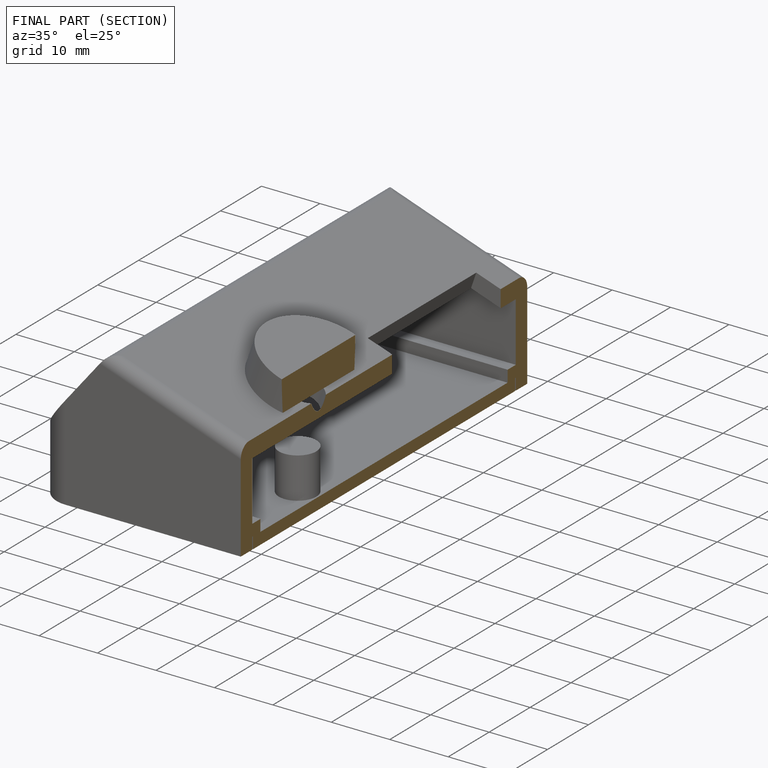
[diagram: finished part — half-section view (interior)]
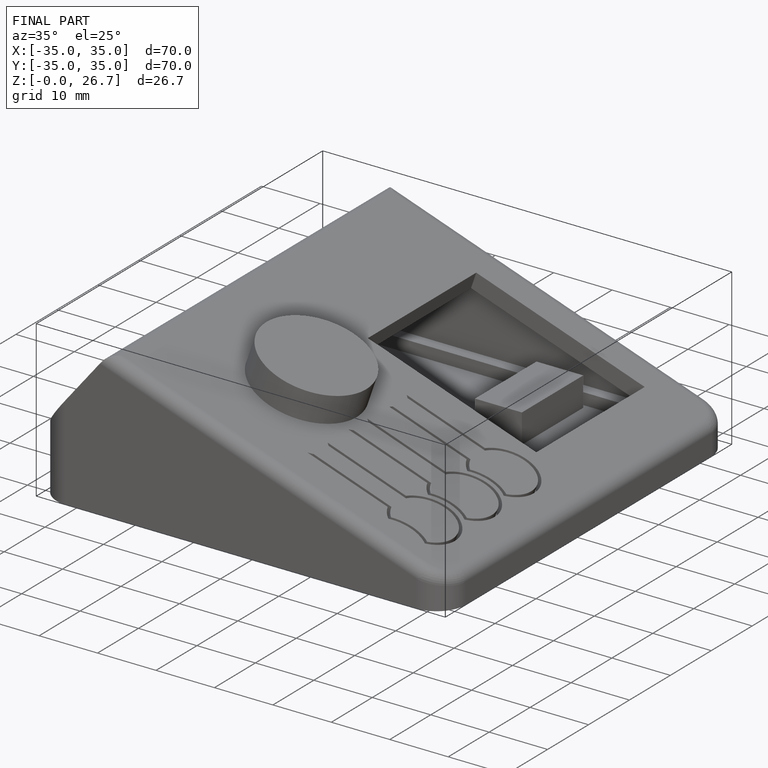
[diagram: finished part — iso view with bounding-box wireframe]
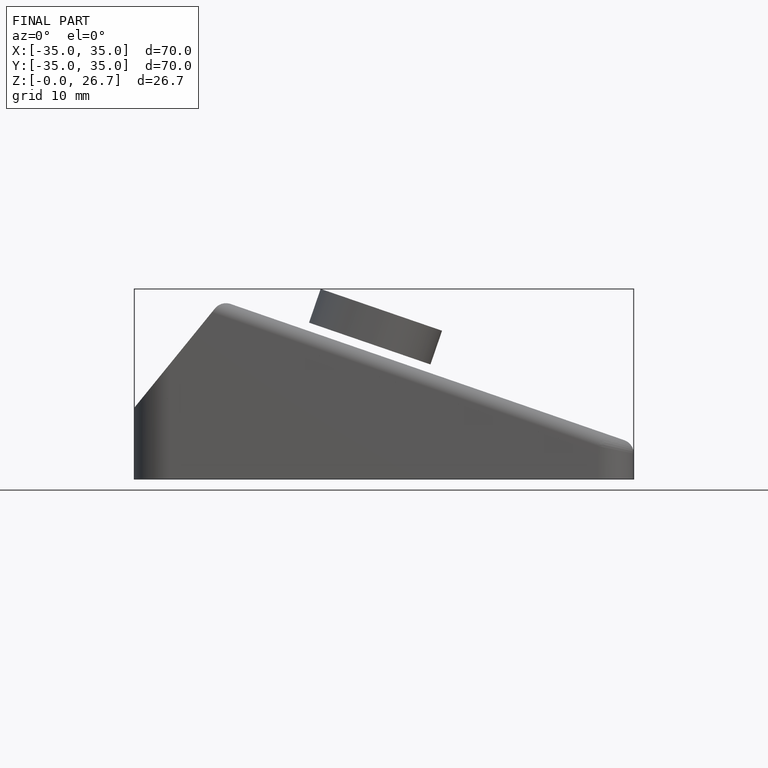
[diagram: finished part — front view with bounding-box wireframe]
